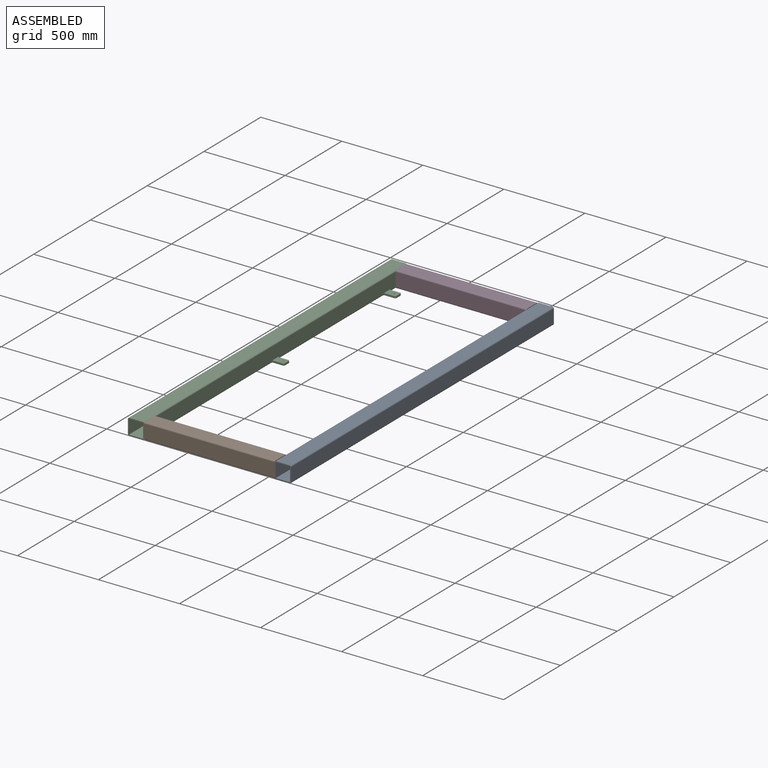
[diagram: assembled view]
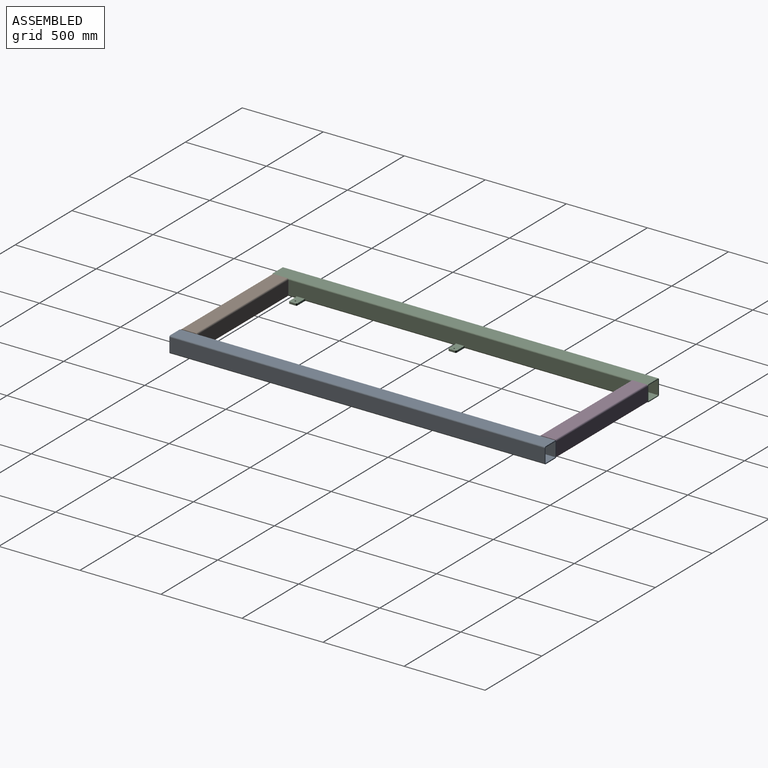
[diagram: assembled view, second angle]
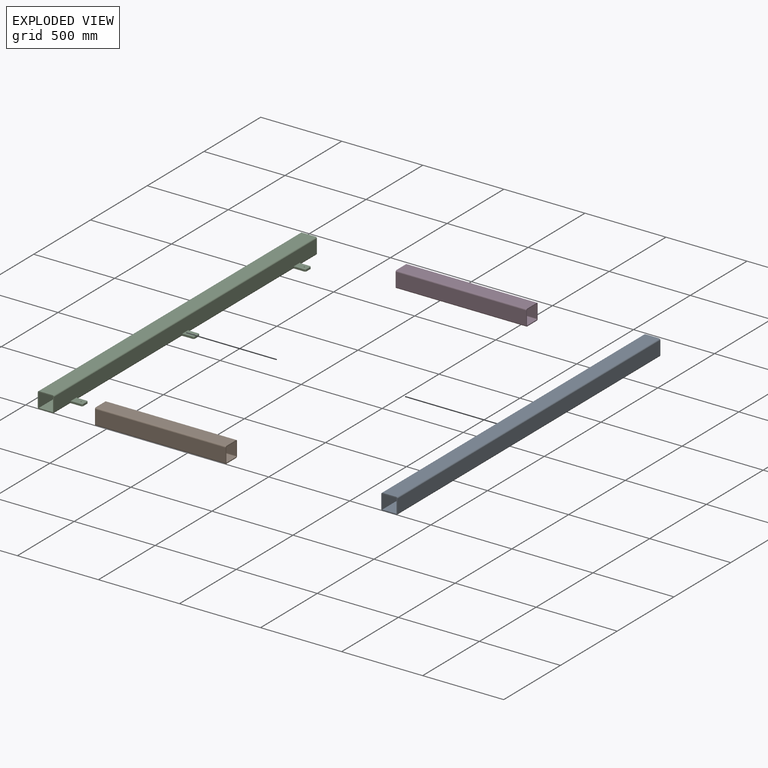
[diagram: exploded view]
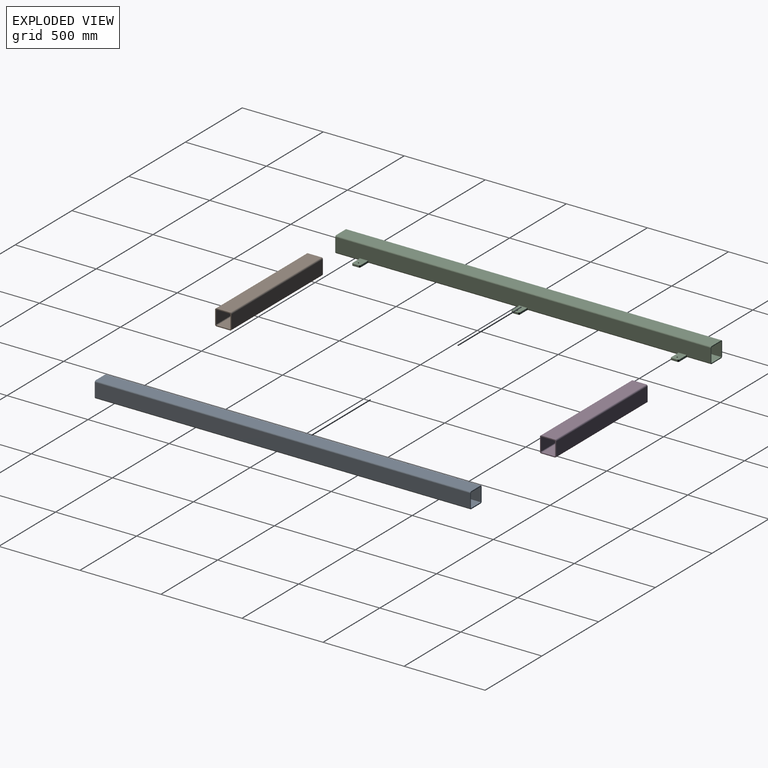
[diagram: exploded view, second angle]
ASSEMBLY  parts=4 mates=3
PART A: 53 faces, bbox 170x2316x106.2 mm
  f0: plane 2316x84mm, normal (1,0,0), area 193368mm2, adj f8,f9,f31,f32,f33,f36,f37,f39
  f1: plane 2316x84mm, normal (0,0,1), area 194544mm2, adj f8,f9,f34,f37
  f2: plane 2316x84mm, normal (-1,0,0), area 194544mm2, adj f8,f9,f34,f35
  f3: plane 2316x162mm, normal (0,0,-1), area 206049mm2, adj f8,f9,f11,f12,f13,f14,f16,f17
  f4: plane 2316x88mm, normal (1,0,0), area 203808mm2, adj f5,f7,f8,f9
  f5: plane 2316x88mm, normal (0,0,-1), area 203808mm2, adj f4,f6,f8,f9
  f6: plane 2316x88mm, normal (-1,0,0), area 203808mm2, adj f5,f7,f8,f9
  f7: plane 2316x88mm, normal (0,0,1), area 203808mm2, adj f4,f6,f8,f9
  f8: plane 100x100mm, normal (0,-1,0), area 2201.1mm2, adj f0,f1,f2,f3,f4,f5,f6,f7
  f9: plane 100x100mm, normal (0,1,0), area 2201.1mm2, adj f0,f1,f2,f3,f4,f5,f6,f7
  f10: plane 67x50mm, normal (0,0,1), area 3268.3mm2, adj f11,f12,f13,f18,f19,f23,f40
  f11: plane 65.45x12mm, normal (0,-1,0), area 752.5mm2, adj f3,f10,f18,f41,f42
  f12: plane 65.45x12mm, normal (0,1,0), area 752.5mm2, adj f3,f10,f19,f38,f39
  f13: plane 40x12mm, normal (1,0,0), area 480mm2, adj f3,f10,f18,f19
  f14: plane 65.45x12mm, normal (0,1,0), area 752.5mm2, adj f3,f15,f21,f50,f52
  f15: plane 67x50mm, normal (0,0,1), area 3268.3mm2, adj f14,f16,f17,f20,f21,f22,f51
  f16: plane 65.45x12mm, normal (0,-1,0), area 752.5mm2, adj f3,f15,f20,f48,f49
  f17: plane 40x12mm, normal (1,0,0), area 480mm2, adj f3,f15,f20,f21
  f18: plane 12x5mm, normal (0.71,-0.71,0), area 84.9mm2, adj f3,f10,f11,f13
  f19: plane 12x5mm, normal (0.71,0.71,0), area 84.9mm2, adj f3,f10,f12,f13
  f20: plane 12x5mm, normal (0.71,-0.71,0), area 84.9mm2, adj f3,f15,f16,f17
  f21: plane 12x5mm, normal (0.71,0.71,0), area 84.9mm2, adj f3,f14,f15,f17
  f22: cylinder r=4.25mm len=12mm, axis (0,0,1), area 320.4mm2, adj f3,f15
  f23: cylinder r=4.25mm len=12mm, axis (0,0,1), area 320.4mm2, adj f3,f10
  f24: plane 67x50mm, normal (0,0,1), area 3268.3mm2, adj f25,f26,f27,f28,f29,f30,f45
  f25: plane 65.45x12mm, normal (0,-1,0), area 752.5mm2, adj f3,f24,f28,f46,f47
  f26: plane 65.45x12mm, normal (0,1,0), area 752.5mm2, adj f3,f24,f29,f43,f44
  f27: plane 40x12mm, normal (1,0,0), area 480mm2, adj f3,f24,f28,f29
  f28: plane 12x5mm, normal (0.71,-0.71,0), area 84.9mm2, adj f3,f24,f25,f27
  f29: plane 12x5mm, normal (0.71,0.71,0), area 84.9mm2, adj f3,f24,f26,f27
  f30: cylinder r=4.25mm len=12mm, axis (0,0,1), area 320.4mm2, adj f3,f24
  f31: cylinder r=8mm len=927mm, axis (0,-1,0), area 11649mm2, adj f0,f3,f43,f48
  f32: cylinder r=8mm len=147mm, axis (0,-1,0), area 1847.3mm2, adj f0,f3,f9,f50
  f33: cylinder r=8mm len=927mm, axis (0,-1,0), area 11649mm2, adj f0,f3,f38,f46
  f34: cylinder r=8mm len=2316mm, axis (0,-1,0), area 29103.7mm2, adj f1,f2,f8,f9
  f35: cylinder r=8mm len=2316mm, axis (0,1,0), area 29103.7mm2, adj f2,f3,f8,f9
  f36: cylinder r=8mm len=147mm, axis (0,-1,0), area 1847.3mm2, adj f0,f3,f8,f41
  f37: cylinder r=8mm len=2316mm, axis (0,1,0), area 29103.7mm2, adj f0,f1,f8,f9
  f38: torus R=11mm, axis (0,1,0), area 48.2mm2, adj f3,f12,f33,f39
  f39: cylinder r=3mm len=7mm, axis (0,0,1), area 24mm2, adj f0,f12,f38,f40
  f40: cylinder r=3mm len=56mm, axis (0,-1,0), area 245.9mm2, adj f0,f10,f39,f42
  f41: torus R=11mm, axis (0,1,0), area 48.2mm2, adj f3,f11,f36,f42
  f42: cylinder r=3mm len=7mm, axis (0,0,-1), area 24mm2, adj f0,f11,f40,f41
  f43: torus R=11mm, axis (0,1,0), area 48.2mm2, adj f3,f26,f31,f44
  f44: cylinder r=3mm len=7mm, axis (0,0,1), area 24mm2, adj f0,f26,f43,f45
  f45: cylinder r=3mm len=56mm, axis (0,-1,0), area 245.9mm2, adj f0,f24,f44,f47
  f46: torus R=11mm, axis (0,1,0), area 48.2mm2, adj f3,f25,f33,f47
  f47: cylinder r=3mm len=7mm, axis (0,0,-1), area 24mm2, adj f0,f25,f45,f46
  f48: torus R=11mm, axis (0,-1,0), area 48.2mm2, adj f3,f16,f31,f49
  f49: cylinder r=3mm len=7mm, axis (0,0,-1), area 24mm2, adj f0,f16,f48,f51
  f50: torus R=11mm, axis (0,-1,0), area 48.2mm2, adj f3,f14,f32,f52
  f51: cylinder r=3mm len=56mm, axis (0,-1,0), area 245.9mm2, adj f0,f15,f49,f52
  f52: cylinder r=3mm len=7mm, axis (0,0,1), area 24mm2, adj f0,f14,f50,f51
PART B: 18 faces, bbox 806x100x100 mm
  f0: plane 806x84mm, normal (0,0,1), area 67704mm2, adj f8,f9,f14,f17
  f1: plane 806x84mm, normal (0,-1,0), area 67704mm2, adj f8,f9,f14,f15
  f2: plane 806x84mm, normal (0,0,-1), area 67704mm2, adj f8,f9,f15,f16
  f3: plane 806x78mm, normal (0,1,0), area 62868mm2, adj f8,f9,f10,f13
  f4: plane 806x78mm, normal (0,0,-1), area 62868mm2, adj f8,f9,f10,f11
  f5: plane 806x78mm, normal (0,-1,0), area 62868mm2, adj f8,f9,f11,f12
  f6: plane 806x78mm, normal (0,0,1), area 62868mm2, adj f8,f9,f12,f13
  f7: plane 806x84mm, normal (0,1,0), area 67704mm2, adj f8,f9,f16,f17
  f8: plane 100x100mm, normal (1,0,0), area 2222.5mm2, adj f0,f1,f2,f3,f4,f5,f6,f7
  f9: plane 100x100mm, normal (-1,0,0), area 2222.5mm2, adj f0,f1,f2,f3,f4,f5,f6,f7
  f10: cylinder r=5mm len=806mm, axis (-1,0,0), area 6330.3mm2, adj f3,f4,f8,f9
  f11: cylinder r=5mm len=806mm, axis (1,0,0), area 6330.3mm2, adj f4,f5,f8,f9
  f12: cylinder r=5mm len=806mm, axis (-1,0,0), area 6330.3mm2, adj f5,f6,f8,f9
  f13: cylinder r=5mm len=806mm, axis (1,0,0), area 6330.3mm2, adj f3,f6,f8,f9
  f14: cylinder r=8mm len=806mm, axis (1,0,0), area 10128.5mm2, adj f0,f1,f8,f9
  f15: cylinder r=8mm len=806mm, axis (-1,0,0), area 10128.5mm2, adj f1,f2,f8,f9
  f16: cylinder r=8mm len=806mm, axis (1,0,0), area 10128.5mm2, adj f2,f7,f8,f9
  f17: cylinder r=8mm len=806mm, axis (-1,0,0), area 10128.5mm2, adj f0,f7,f8,f9
PART C: same geometry as A
PART D: same geometry as B
PLACE A rot(axis=(0,0,1),180deg) t=(1635.48,-2068.3,-572.55)mm
PLACE B t=(779.48,-2018.3,-572.55)mm
PLACE C t=(729.48,247.7,-572.55)mm
PLACE D rot(axis=(0,0,1),180deg) t=(1585.48,197.7,-572.55)mm
MATE fastened D.f8 <-> C.f0  axis (-1,0,0) through (779.48,247.7,-572.55)mm
MATE fastened A.f0 <-> B.f8  axis (-1,0,0) through (1585.48,-2068.3,-572.55)mm
MATE fastened B.f9 <-> C.f0  axis (-1,0,0) through (779.48,-2068.3,-572.55)mm
